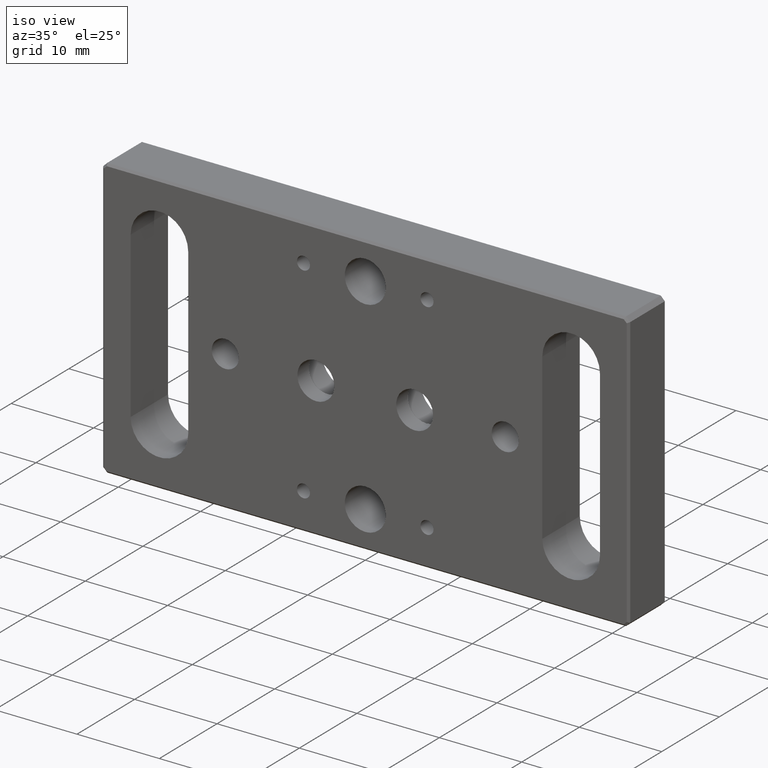
[diagram: clean part render]
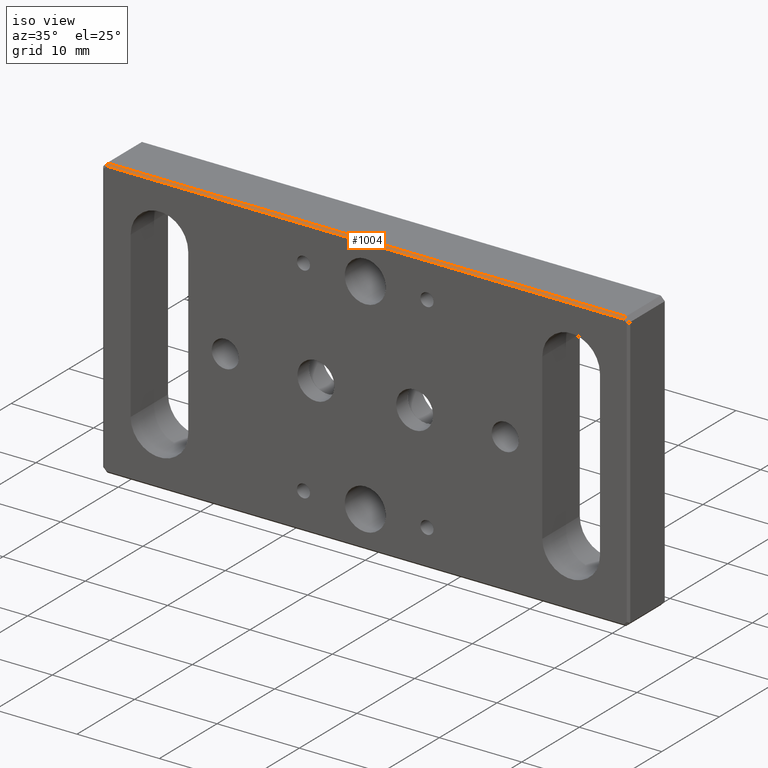
[diagram: same view with one face highlighted and labeled with its STEP entity id]
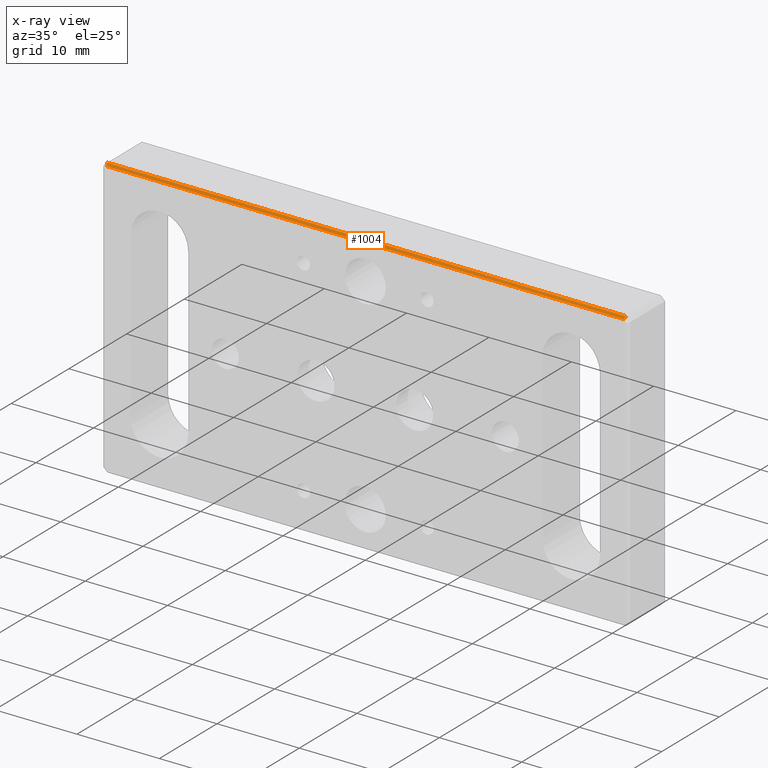
[diagram: x-ray of the same camera — body ghosted, the highlighted face saturated]
A machine part, iso view. The second image highlights one B-rep face of the part: STEP entity #1004.
The next image is the same camera in x-ray: the body ghosted, the highlighted face saturated — about 0% of this face is hidden behind the body in this view.
In plain terms, the highlighted planar face has unit normal (0, 0.7071, -0.7071).
Its self-contained STEP definition (entity closure, byte-faithful):
#28 = PLANE ( 'NONE',  #825 ) ;
#33 = VERTEX_POINT ( 'NONE', #193 ) ;
#39 = DIRECTION ( 'NONE',  ( 0.2810846377148091269, 0.6785983445458493302, 0.6785983445458493302 ) ) ;
#41 = EDGE_CURVE ( 'NONE', #1024, #67, #680, .T. ) ;
#67 = VERTEX_POINT ( 'NONE', #182 ) ;
#127 = CARTESIAN_POINT ( 'NONE',  ( -31.53950428677963913, 0.3453717849152772024, 17.09537178491527243 ) ) ;
#182 = CARTESIAN_POINT ( 'NONE',  ( 31.49999999999997868, 0.2500000000000002220, 16.99999999999999645 ) ) ;
#193 = CARTESIAN_POINT ( 'NONE',  ( -31.50000000000000000, 0.2500000000000002220, 16.99999999999999645 ) ) ;
#229 = ORIENTED_EDGE ( 'NONE', *, *, #41, .T. ) ;
#254 = LINE ( 'NONE', #1171, #1352 ) ;
#307 = DIRECTION ( 'NONE',  ( -1.000000000000000000, 0.000000000000000000, 0.000000000000000000 ) ) ;
#322 = CARTESIAN_POINT ( 'NONE',  ( -31.39644660940671983, 0.000000000000000000, 16.74999999999999645 ) ) ;
#471 = EDGE_CURVE ( 'NONE', #1024, #1635, #254, .T. ) ;
#539 = DIRECTION ( 'NONE',  ( 0.000000000000000000, 0.7071067811865475727, -0.7071067811865475727 ) ) ;
#648 = DIRECTION ( 'NONE',  ( 1.000000000000000000, 0.000000000000000000, 0.000000000000000000 ) ) ;
#677 = CARTESIAN_POINT ( 'NONE',  ( -32.00000000000000711, 0.2500000000000002220, 16.99999999999999645 ) ) ;
#680 = LINE ( 'NONE', #818, #1535 ) ;
#749 = VECTOR ( 'NONE', #1415, 1000.000000000000114 ) ;
#765 = ORIENTED_EDGE ( 'NONE', *, *, #886, .F. ) ;
#802 = ORIENTED_EDGE ( 'NONE', *, *, #1330, .F. ) ;
#818 = CARTESIAN_POINT ( 'NONE',  ( 32.21470693805144947, 1.975455182966093348, 18.72545518296608691 ) ) ;
#825 = AXIS2_PLACEMENT_3D ( 'NONE', #677, #539, #1177 ) ;
#847 = VECTOR ( 'NONE', #648, 1000.000000000000000 ) ;
#857 = ORIENTED_EDGE ( 'NONE', *, *, #471, .F. ) ;
#877 = LINE ( 'NONE', #127, #749 ) ;
#886 = EDGE_CURVE ( 'NONE', #1635, #33, #877, .T. ) ;
#1004 = ADVANCED_FACE ( 'NONE', ( #1301 ), #28, .F. ) ;
#1024 = VERTEX_POINT ( 'NONE', #1502 ) ;
#1074 = EDGE_LOOP ( 'NONE', ( #229, #802, #765, #857 ) ) ;
#1171 = CARTESIAN_POINT ( 'NONE',  ( 0.000000000000000000, 0.000000000000000000, 16.74999999999999645 ) ) ;
#1177 = DIRECTION ( 'NONE',  ( 1.000000000000000000, -0.000000000000000000, 0.000000000000000000 ) ) ;
#1301 = FACE_OUTER_BOUND ( 'NONE', #1074, .T. ) ;
#1330 = EDGE_CURVE ( 'NONE', #33, #67, #1527, .T. ) ;
#1352 = VECTOR ( 'NONE', #307, 1000.000000000000000 ) ;
#1400 = CARTESIAN_POINT ( 'NONE',  ( -32.00000000000000711, 0.2500000000000002220, 16.99999999999999645 ) ) ;
#1415 = DIRECTION ( 'NONE',  ( -0.2810846377148288333, 0.6785983445458452223, 0.6785983445458452223 ) ) ;
#1502 = CARTESIAN_POINT ( 'NONE',  ( 31.39644660940670562, 0.000000000000000000, 16.74999999999999645 ) ) ;
#1527 = LINE ( 'NONE', #1400, #847 ) ;
#1535 = VECTOR ( 'NONE', #39, 1000.000000000000114 ) ;
#1635 = VERTEX_POINT ( 'NONE', #322 ) ;